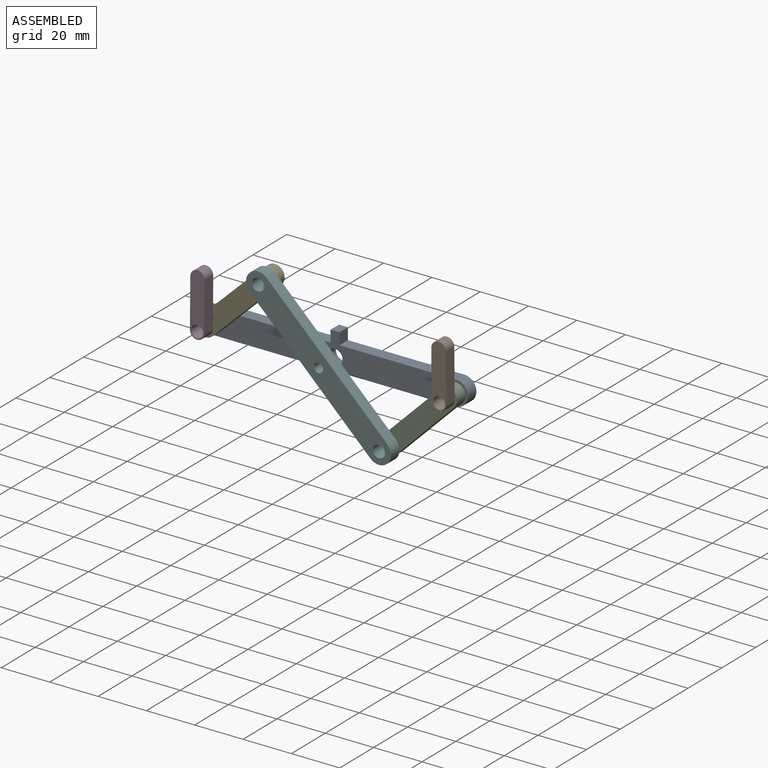
[diagram: assembled view]
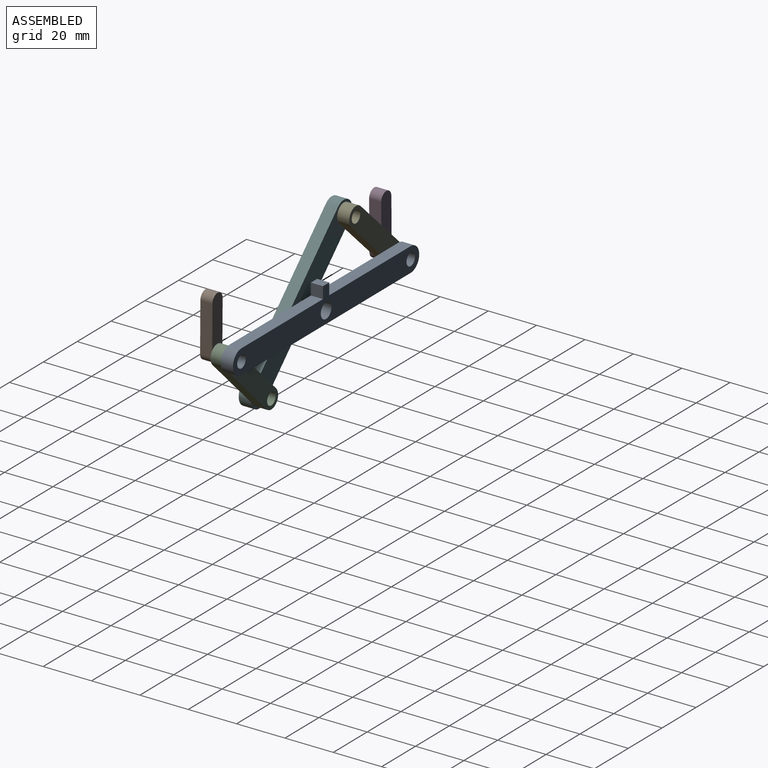
[diagram: assembled view, second angle]
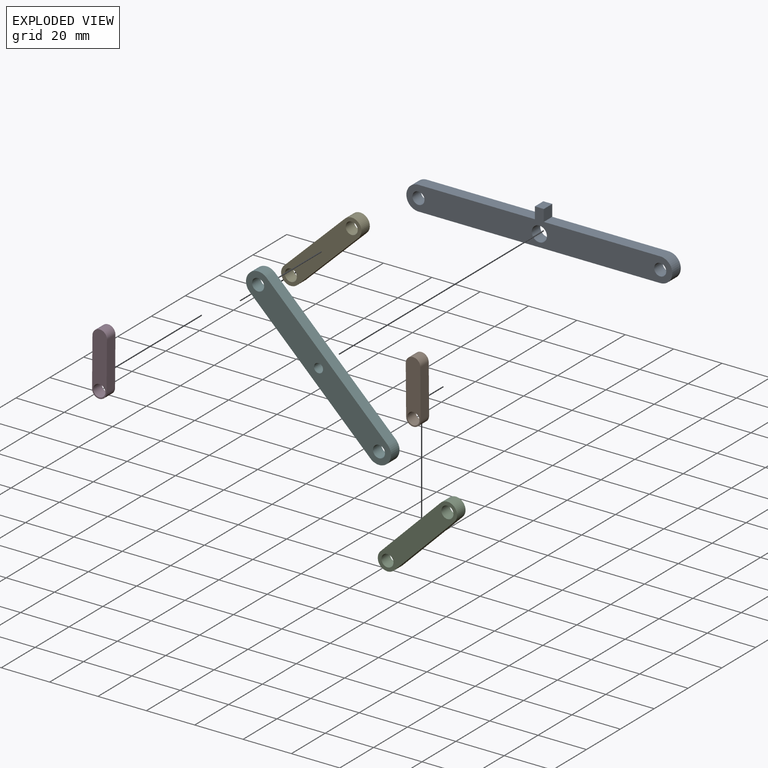
[diagram: exploded view]
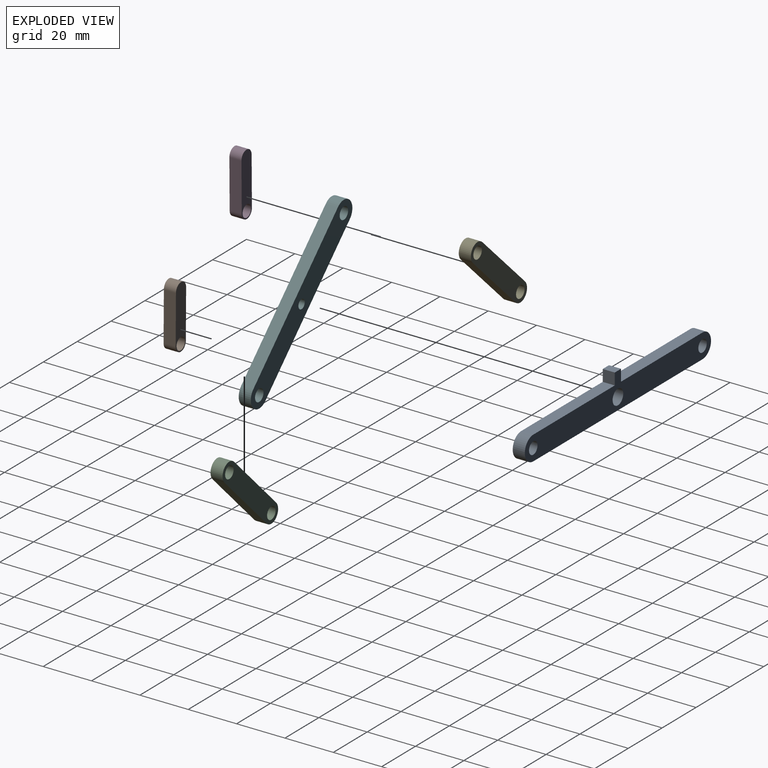
[diagram: exploded view, second angle]
ASSEMBLY  parts=6 mates=6
PART A: 13 faces, bbox 110x5x14.8 mm
  f0: plane 5x4.82mm, normal (-1,0,0), area 24.1mm2, adj f1,f9,f11,f12
  f1: plane 48.15x5mm, normal (0,0,1), area 240.8mm2, adj f0,f2,f11,f12
  f2: cylinder r=5mm len=10mm, axis (0,1,0), area 78.5mm2, adj f1,f3,f11,f12
  f3: plane 100x5mm, normal (0,0,-1), area 500mm2, adj f2,f4,f11,f12
  f4: cylinder r=5mm len=10mm, axis (0,1,0), area 78.5mm2, adj f3,f5,f11,f12
  f5: plane 48.15x5mm, normal (0,0,1), area 240.8mm2, adj f4,f6,f11,f12
  f6: plane 5x4.82mm, normal (1,0,0), area 24.1mm2, adj f5,f9,f11,f12
  f7: cylinder r=2.5mm len=5mm, axis (0,1,0), area 78.5mm2, adj f11,f12
  f8: cylinder r=3.13mm len=6.26mm, axis (0,1,0), area 98.4mm2, adj f11,f12
  f9: plane 5x3.7mm, normal (0,0,1), area 18.5mm2, adj f0,f6,f11,f12
  f10: cylinder r=2.5mm len=5mm, axis (0,1,0), area 78.5mm2, adj f11,f12
  f11: plane 110x14.82mm, normal (0,-1,0), area 1026.3mm2, adj f0,f1,f2,f3,f4,f5,f6,f7
  f12: plane 110x14.82mm, normal (0,1,0), area 1026.3mm2, adj f0,f1,f2,f3,f4,f5,f6,f7
PART B: 7 faces, bbox 6x5x26 mm
  f0: plane 20x5mm, normal (-1,0,0), area 100mm2, adj f1,f3,f5,f6
  f1: cylinder r=3mm len=6mm, axis (0,1,0), area 47.1mm2, adj f0,f2,f5,f6
  f2: plane 20x5mm, normal (1,0,0), area 100mm2, adj f1,f3,f5,f6
  f3: cylinder r=3mm len=6mm, axis (0,1,0), area 47.1mm2, adj f0,f2,f5,f6
  f4: cylinder r=2.5mm len=5mm, axis (0,1,0), area 78.5mm2, adj f5,f6
  f5: plane 26x6mm, normal (0,-1,0), area 128.6mm2, adj f0,f1,f2,f3,f4
  f6: plane 26x6mm, normal (0,1,0), area 128.6mm2, adj f0,f1,f2,f3,f4
PART C: 8 faces, bbox 35x5x30.3 mm
  f0: plane 26.97x22.3mm, normal (-0.64,0,0.77), area 175mm2, adj f1,f3,f6,f7
  f1: cylinder r=4mm len=7.08mm, axis (0,1,0), area 62.8mm2, adj f0,f2,f6,f7
  f2: plane 26.97x22.3mm, normal (0.64,0,-0.77), area 175mm2, adj f1,f3,f6,f7
  f3: cylinder r=4mm len=7.08mm, axis (0,1,0), area 62.8mm2, adj f0,f2,f6,f7
  f4: cylinder r=2.5mm len=5mm, axis (0,1,0), area 78.5mm2, adj f6,f7
  f5: cylinder r=2.5mm len=5mm, axis (0,1,0), area 78.5mm2, adj f6,f7
  f6: plane 34.97x30.3mm, normal (0,-1,0), area 291mm2, adj f0,f1,f2,f3,f4,f5
  f7: plane 34.97x30.3mm, normal (0,1,0), area 291mm2, adj f0,f1,f2,f3,f4,f5
PART D: same geometry as B
PART E: same geometry as C
PART F: 9 faces, bbox 67.6x5x49.8 mm
  f0: plane 57.57x39.83mm, normal (0.57,0,0.82), area 350mm2, adj f1,f3,f7,f8
  f1: cylinder r=5mm len=9.11mm, axis (0,1,0), area 78.5mm2, adj f0,f2,f7,f8
  f2: plane 57.57x39.83mm, normal (-0.57,0,-0.82), area 350mm2, adj f1,f3,f7,f8
  f3: cylinder r=5mm len=9.11mm, axis (0,1,0), area 78.5mm2, adj f0,f2,f7,f8
  f4: cylinder r=1.88mm len=5mm, axis (0,1,0), area 58.9mm2, adj f7,f8
  f5: cylinder r=2.5mm len=5mm, axis (0,1,0), area 78.5mm2, adj f7,f8
  f6: cylinder r=2.5mm len=5mm, axis (0,1,0), area 78.5mm2, adj f7,f8
  f7: plane 67.57x49.83mm, normal (0,-1,0), area 728.2mm2, adj f0,f1,f2,f3,f4,f5,f6
  f8: plane 67.57x49.83mm, normal (0,1,0), area 728.2mm2, adj f0,f1,f2,f3,f4,f5,f6
PLACE A t=(0,2.5,-0.13)mm
PLACE B rot(axis=(0,-1,0),0.5deg) t=(100,-7.5,0.27)mm
PLACE C rot(axis=(0,1,0),174.7deg) t=(0.12,-2.5,-4.74)mm
PLACE D rot(axis=(0,1,0),0.5deg) t=(0,-7.5,-0.53)mm
PLACE E rot(axis=(0,-1,0),4.4deg) t=(-0.05,-2.5,3.69)mm
PLACE F rot(axis=(0,1,0),9.7deg) t=(-5.79,-7.5,-1.72)mm
MATE cylindrical C.f3 <-> F.f3  axis (0,1,0) through (25.2,-5,-24.82)mm
MATE cylindrical C.f5 <-> A.f10  axis (0,1,0) through (50,0,-0.13)mm
MATE revolute D.f4 <-> E.f5  axis (0,1,0) through (-50,-5,-0.13)mm
MATE cylindrical E.f5 <-> A.f7  axis (0,1,0) through (-50,0,-0.13)mm
MATE cylindrical F.f1 <-> E.f3  axis (0,1,0) through (-24.81,-5,24.17)mm
MATE revolute C.f5 <-> B.f4  axis (0,-1,0) through (50,-5,-0.13)mm
